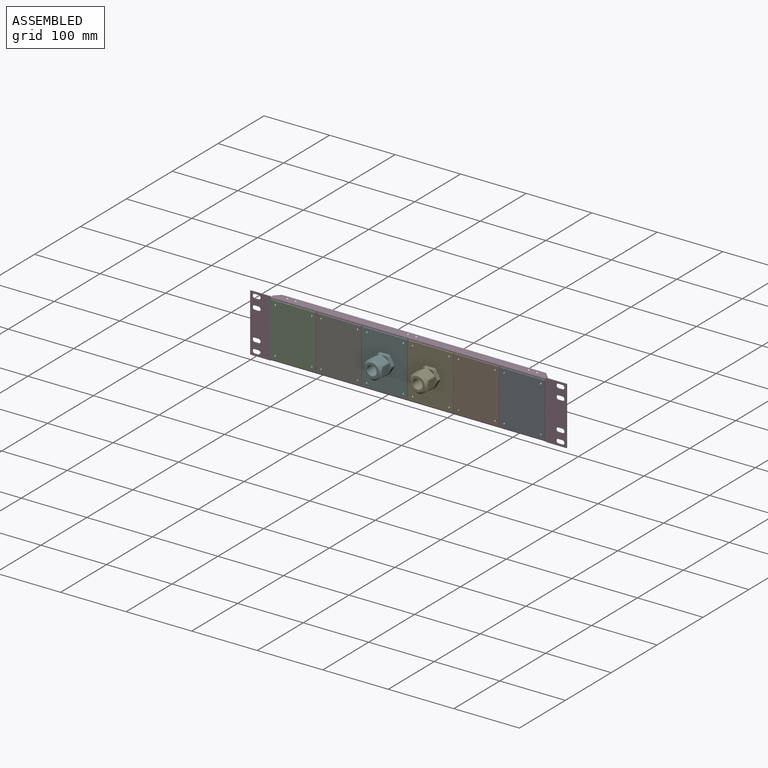
[diagram: assembled view]
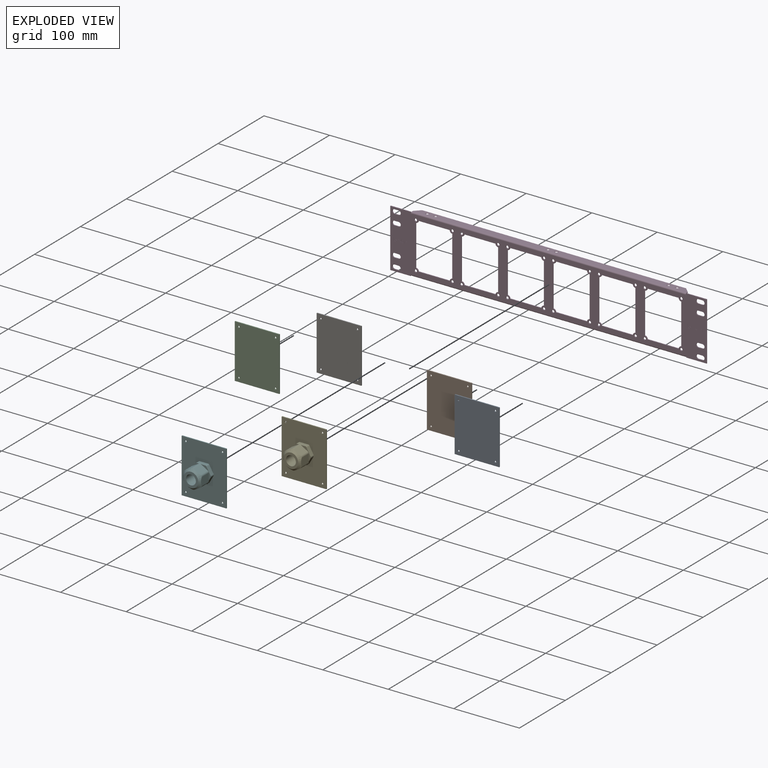
[diagram: exploded view]
GUIDED TOUR — MATED ASSEMBLY WITH SUBASSEMBLIES (Onshape document e841af8a7faca1a6e9dc9725, AutoMate assembly e841af8a7faca1a6e9dc9725_560531e6a08ae0286fed6a2a_71f489b101f3ecda44ea6269_default)

This assembly has 9 component occurrences arranged in 7 top-level units: 5 individual components plus 2 subassemblies (S0, S1). The tour has two levels: first the top level, where each subassembly is treated as one rigid unit; then each subassembly is toured internally in its own section (nesting deeper than one subassembly level is flattened into its subassembly's section).

Components are labeled P0..P8 across the whole record; subassembly units are labeled S0..S1. A mate is a constraint between two units; its type names the relative motion it leaves free:
  REVOLUTE — leaves rotation about the listed axis free (a hinge).
Axis/direction vectors are unit vectors and 'through' points are millimeter coordinates, both in the assembly's world frame.

TOP-LEVEL MATES (between units; each subassembly's internal mates are listed in its own section)
  1. REVOLUTE "Revolute 5": P7 <-> P3, axis (0.000, 1.000, 0.000) through (164.46, -1.27, 79.25) mm
  2. REVOLUTE "Revolute 10": P3 <-> P1, axis (0.000, -1.000, 0.000) through (374.02, -1.27, 9.14) mm
  3. REVOLUTE "Revolute 11": P3 <-> P0, axis (0.000, -1.000, 0.000) through (387.99, -1.27, 79.25) mm
  4. REVOLUTE "Revolute 8": P3 <-> P2, axis (0.000, -1.000, 0.000) through (94.61, -1.27, 79.25) mm
  5. REVOLUTE "Revolute 7": P2 <-> P3, axis (0.000, 1.000, 0.000) through (38.73, -1.27, 9.14) mm
  6. REVOLUTE "Revolute 4": S0 <-> P3, axis (0.000, 1.000, 0.000) through (304.17, -1.27, 9.14) mm
  7. REVOLUTE "Revolute 9": P1 <-> P3, axis (0.000, 1.000, 0.000) through (374.02, -1.27, 79.25) mm
  8. REVOLUTE "Revolute 3": S0 <-> P3, axis (0.000, 1.000, 0.000) through (248.29, -1.27, 79.25) mm
  9. REVOLUTE "Revolute 2": P3 <-> S1, axis (0.000, -1.000, 0.000) through (234.31, -1.27, 9.14) mm
  10. REVOLUTE "Revolute 12": P3 <-> P0, axis (0.000, -1.000, 0.000) through (443.87, -1.27, 9.14) mm
  11. REVOLUTE "Revolute 6": P7 <-> P3, axis (0.000, 1.000, 0.000) through (164.46, -1.27, 9.14) mm
  12. REVOLUTE "Revolute 1": S1 <-> P3, axis (0.000, 1.000, 0.000) through (178.43, -1.27, 79.25) mm

TOP-LEVEL ASSEMBLY ORDER
  1. P7 — the base component [order verified]
  2. S1 [order verified]
  3. S0 [order verified]
  4. P2 [order verified]
  5. P1 [order verified]
  6. P0 [order verified]
  7. P3 [order verified]
Order-tag legend:
  [order verified] — this step's position reverses a verified removal order: the component was checked to insert without passing through the ones already placed.

Of the 9 component occurrences, 6 carry the full construction recipe — the FeatureScript program that regenerates the part's solid from scratch; the rest are supplied as boundary geometry only. Each toured unit is shown spotlighted twice — assembled, then exploded with a leader line back to its socket (green = recipe-attached component, orange = geometry-only, blue = subassembly unit; the rest desaturated gray).
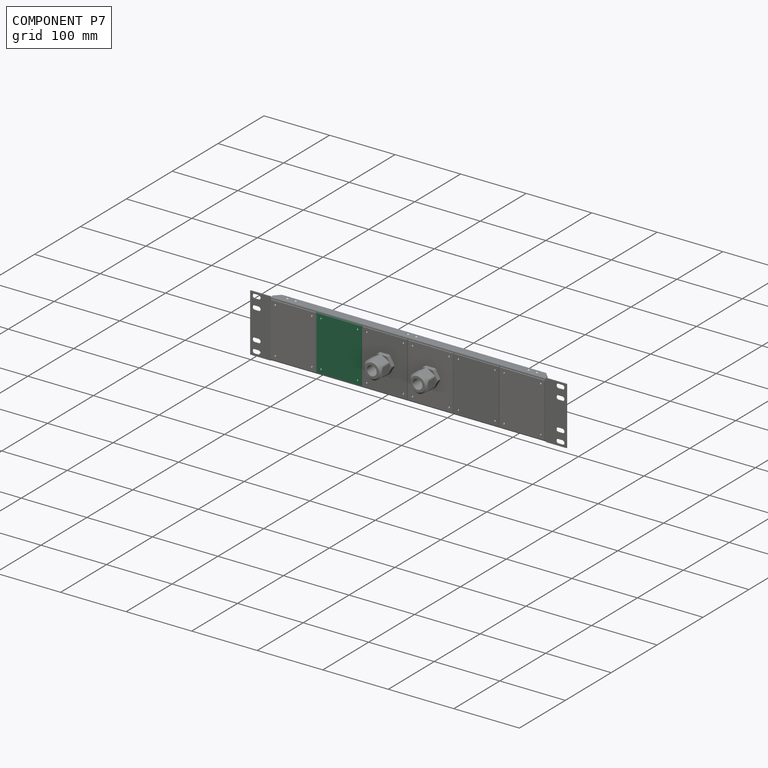
[diagram: component P7 — assembled]
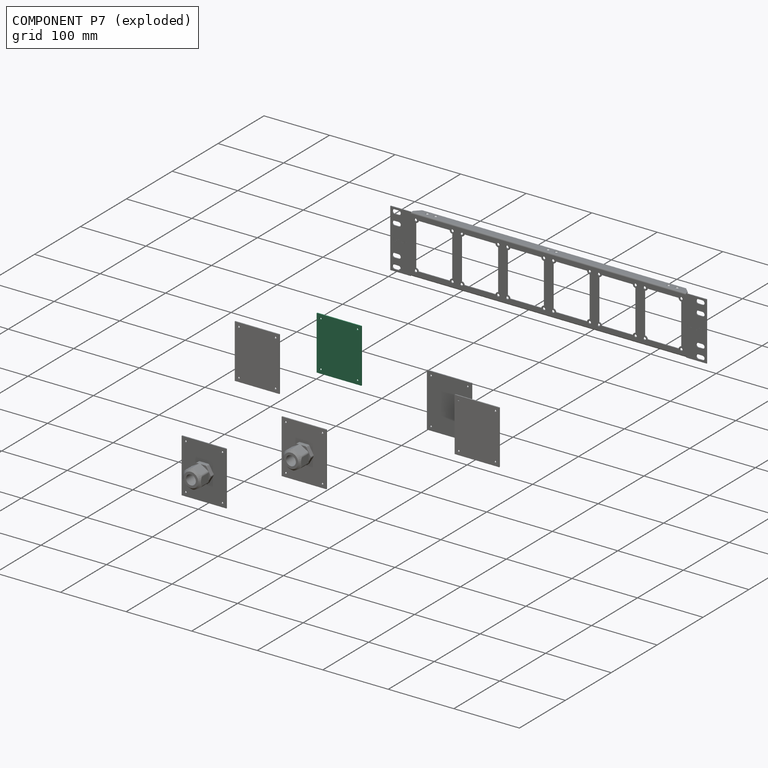
[diagram: component P7 — exploded]
COMPONENT P7 — same part as P0 (CADFS 00722018); its construction recipe is shown at P0.
Held by: REVOLUTE mate "Revolute 5" to P3; REVOLUTE mate "Revolute 6" to P3.
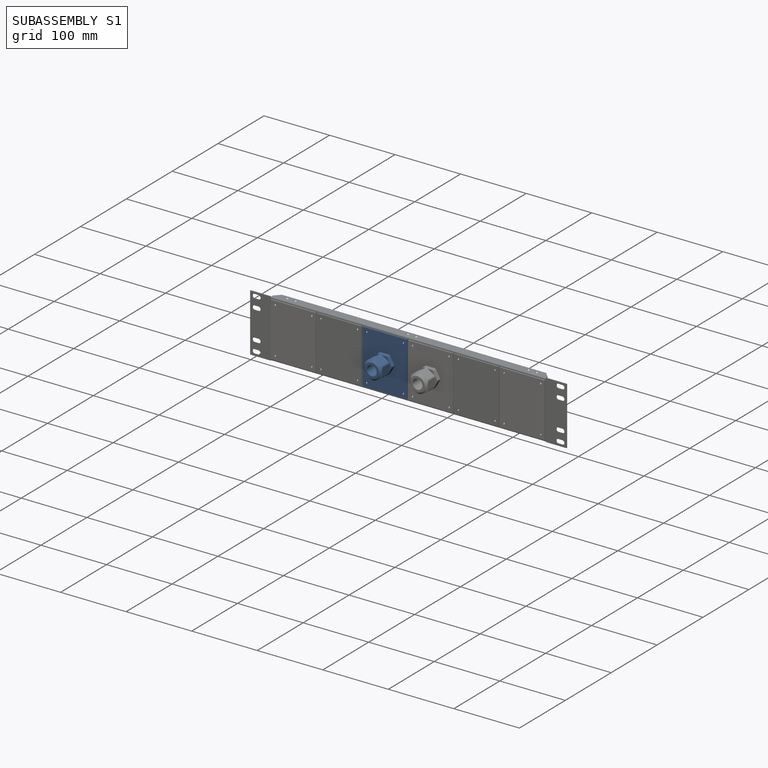
[diagram: subassembly S1 — assembled]
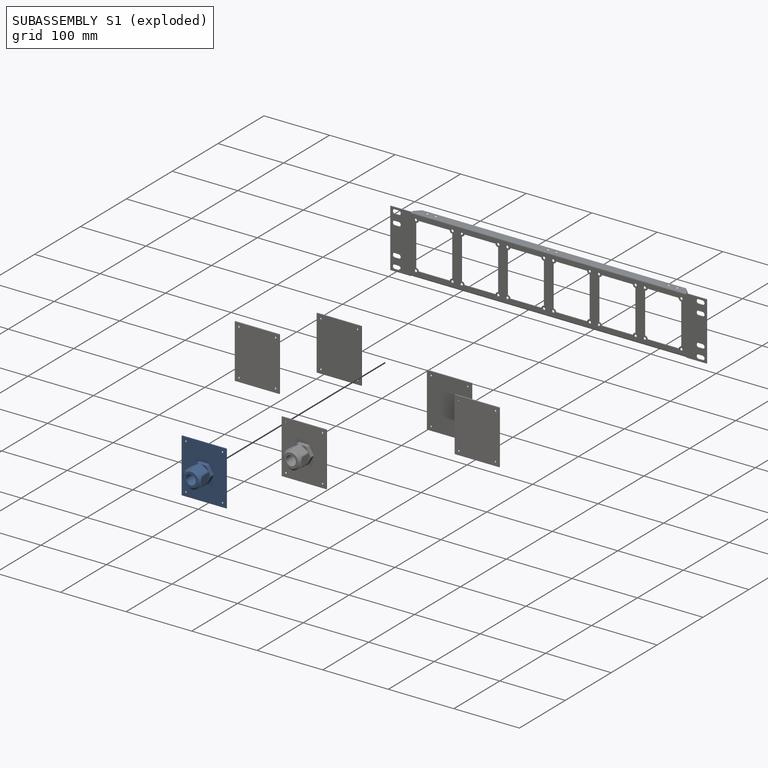
[diagram: subassembly S1 — exploded]
SUBASSEMBLY S1 — 2 components (P5, P6), of which 1 recipe-attached; toured below.
Held by: REVOLUTE mate "Revolute 2" to P3; REVOLUTE mate "Revolute 1" to P3.
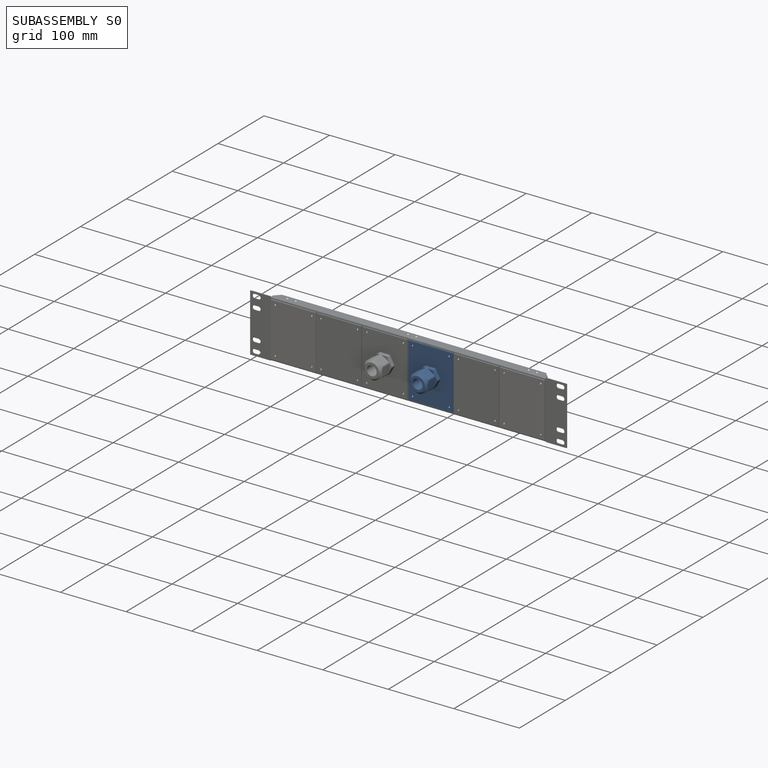
[diagram: subassembly S0 — assembled]
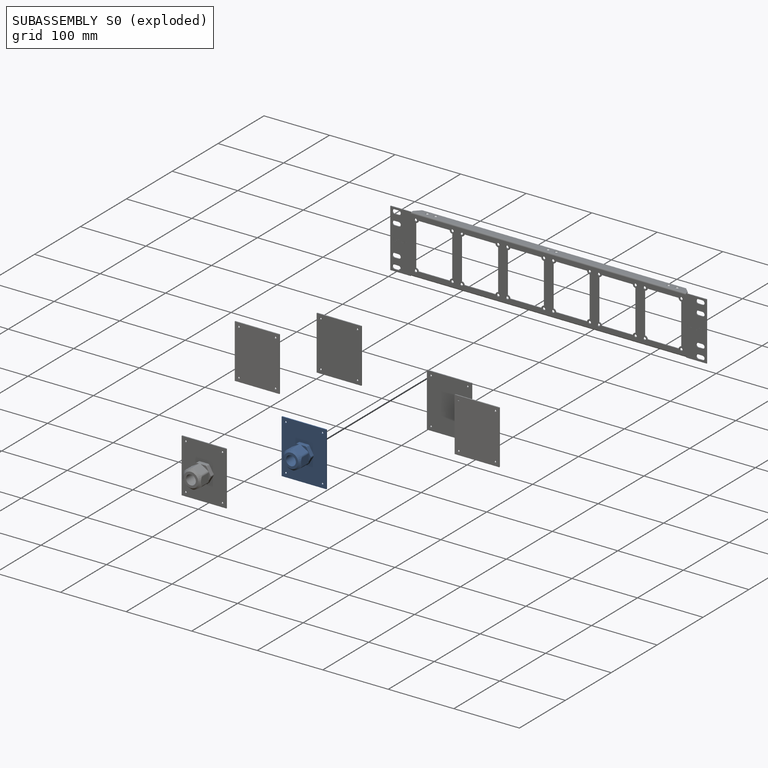
[diagram: subassembly S0 — exploded]
SUBASSEMBLY S0 — 2 components (P4, P8), of which 1 recipe-attached; toured below.
Held by: REVOLUTE mate "Revolute 4" to P3; REVOLUTE mate "Revolute 3" to P3.
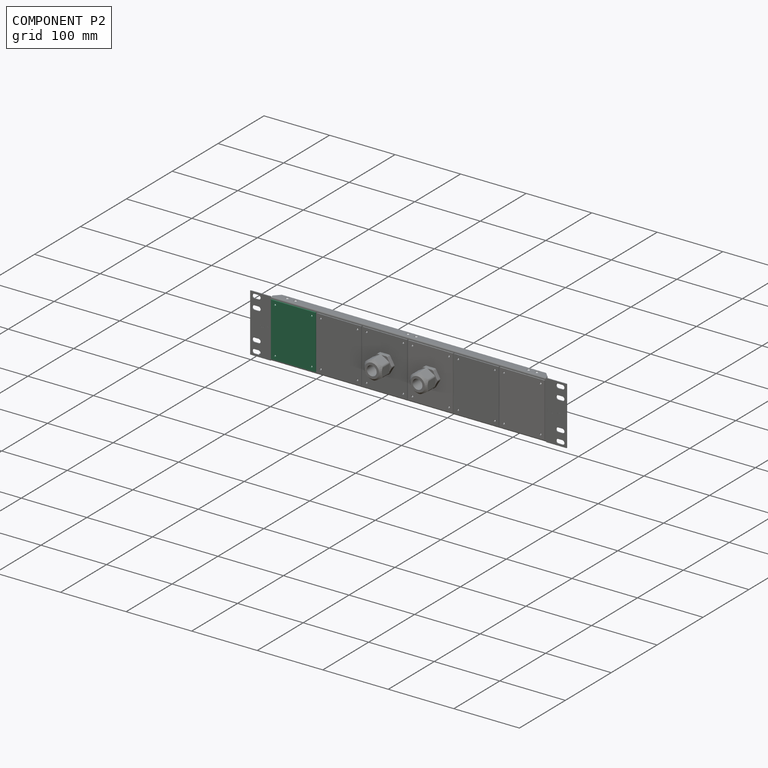
[diagram: component P2 — assembled]
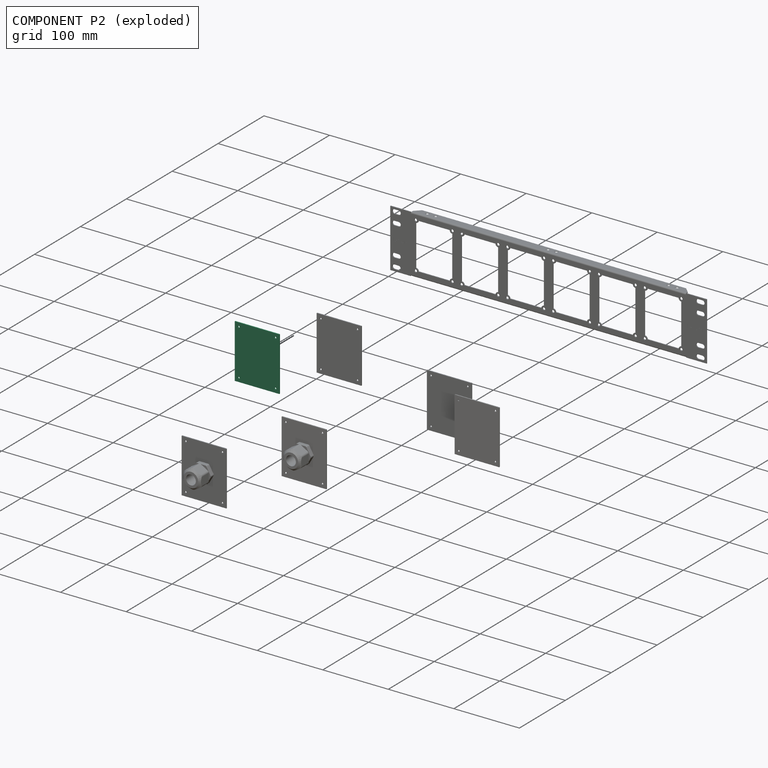
[diagram: component P2 — exploded]
COMPONENT P2 — same part as P0 (CADFS 00722018); its construction recipe is shown at P0.
Held by: REVOLUTE mate "Revolute 8" to P3; REVOLUTE mate "Revolute 7" to P3.
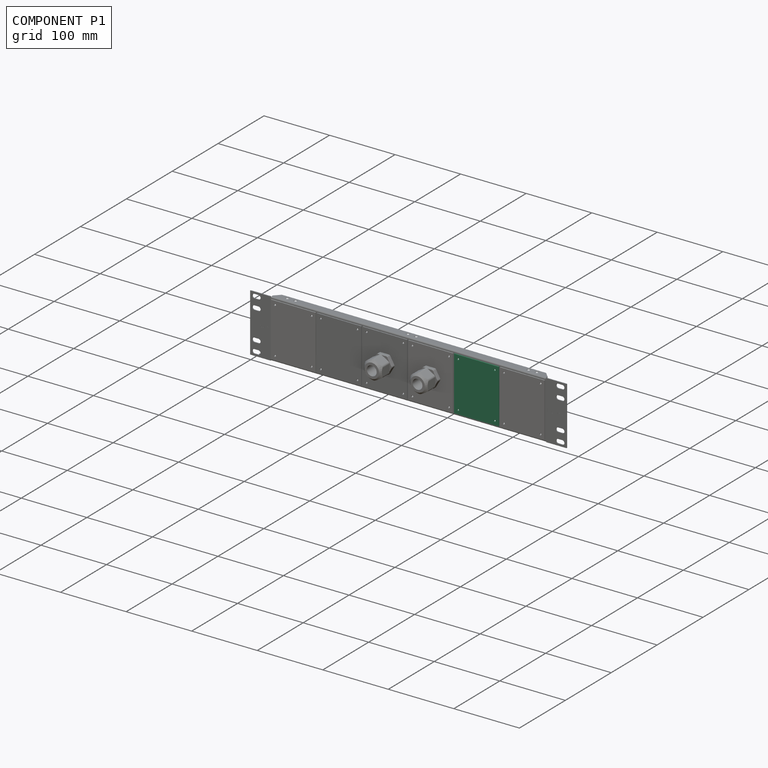
[diagram: component P1 — assembled]
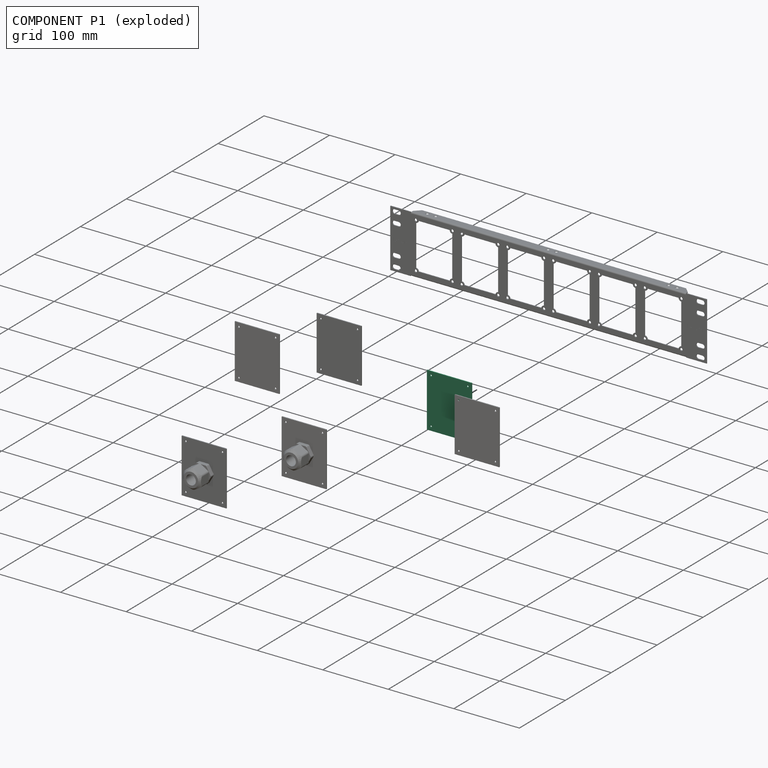
[diagram: component P1 — exploded]
COMPONENT P1 — same part as P0 (CADFS 00722018); its construction recipe is shown at P0.
Held by: REVOLUTE mate "Revolute 10" to P3; REVOLUTE mate "Revolute 9" to P3.
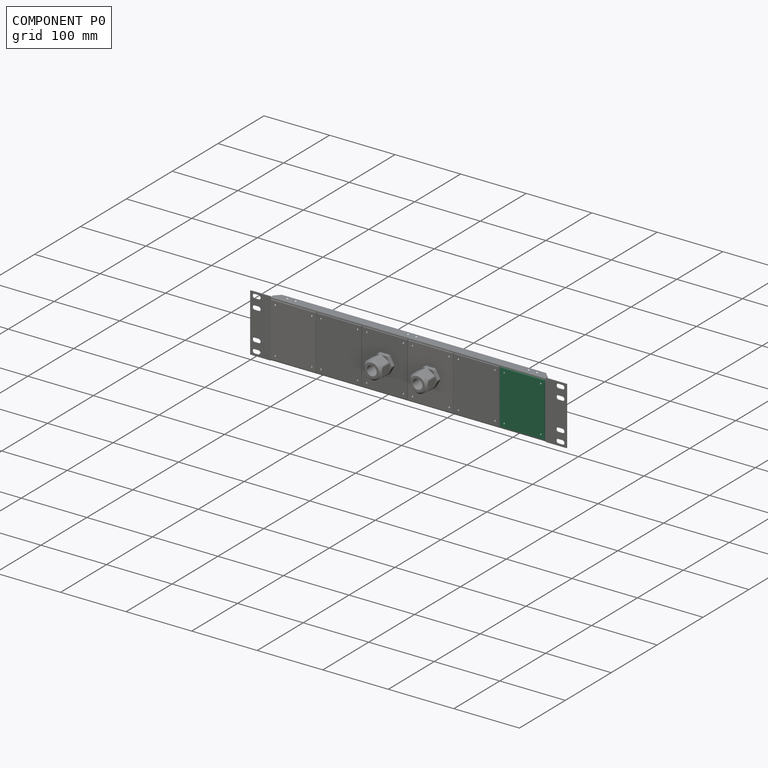
[diagram: component P0 — assembled]
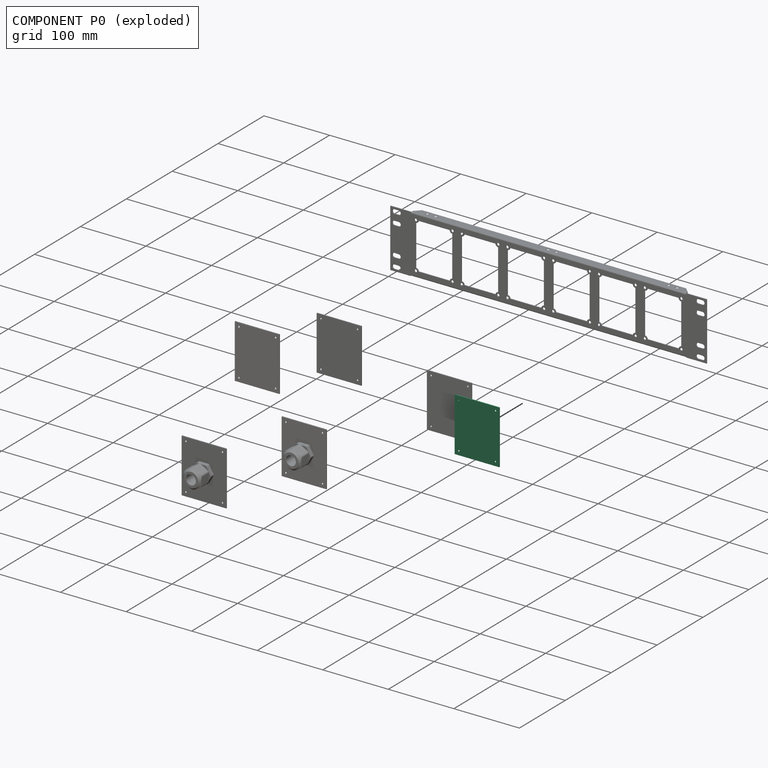
[diagram: component P0 — exploded]
COMPONENT P0 — recipe-attached (CADFS 00722018, mesh-verified: the recipe's output STEP matches this component's geometry to below the mesh-comparison resolution (tessellation chordal tolerance ~0.16 mm)).
Held by: REVOLUTE mate "Revolute 11" to P3; REVOLUTE mate "Revolute 12" to P3.
Construction recipe (FeatureScript — the CAD program that rebuilds this solid; sketch coordinates are in the units given by the * unit suffixes, e.g. mm):

FeatureScript 1511;
import(path : "onshape/std/geometry.fs", version : "1511.0");
import(path : "onshape/std/common.fs", version : "1511.0");
const mm = millimeter;
const VERTEX = EntityType.VERTEX;
const EDGE = EntityType.EDGE;
const FACE = EntityType.FACE;
const BODY = EntityType.BODY;
function v(x, y){return vector(x, y);}
function OD(order){return orderDisambiguation(order);}
function OSD(set){return originalSetDisambiguation(set);}
function TD(topology){return topologyDisambiguation(topology);}
function TDD(query){return trueDependencyDisambiguation(query);}
function sQuery(a, b, c) {return sketchEntityQuery(a, b, c);}

annotation { "Feature Type Name" : "Feature", "Feature Type Description" : "" }
export const myFeature = defineFeature(function(context is Context, id is Id, definition is map)
    precondition{}
    {
        {
            var Q0;
            Q0=qCreatedBy(makeId("Front.planeOp"),FACE);
            var sketch = newSketch(context, id + "F0", { "sketchPlane" : qUnion([Q0])});
            skLineSegment(sketch, "E0.bottom", {"start": v(0, 0) * mm, "end": v(68.07, 0) * mm});
            skLineSegment(sketch, "E0.top", {"start": v(0, -82.04) * mm, "end": v(68.07, -82.04) * mm});
            skLineSegment(sketch, "E0.left", {"start": v(0, 0) * mm, "end": v(0, -82.04) * mm});
            skLineSegment(sketch, "E0.right", {"start": v(68.07, 0) * mm, "end": v(68.07, -82.04) * mm});
            skSolve(sketch);
        }
        {
            var Q0;
            Q0 = qSketchRegion(id + "F0", true);
            extrude(context, id + "F1", {"entities" : qUnion([Q0]), "depth" : 1.52 * mm, "offsetDistance" : 25.4 * mm});
        }
        {
            var Q0;
            Q0=makeQuery(id+"F1.opExtrude","CAP_FACE",FACE,{"disambiguationData":[OSD([sQuery(id+"F0.wireOp",EDGE,"E0.bottom"),sQuery(id+"F0.wireOp",EDGE,"E0.top"),sQuery(id+"F0.wireOp",EDGE,"E0.left"),sQuery(id+"F0.wireOp",EDGE,"E0.right")])],"isStart":false});
            var sketch = newSketch(context, id + "F2", { "sketchPlane" : qUnion([Q0])});
            skPoint(sketch, "E1", {"position": v(6.1, -5.97) * mm});
            skPoint(sketch, "E2", {"position": v(61.98, -5.97) * mm});
            skPoint(sketch, "E3", {"position": v(61.98, -76.07) * mm});
            skPoint(sketch, "E4", {"position": v(6.1, -76.07) * mm});
            skLineSegment(sketch, "E5", {"start": v(34.04, 0) * mm, "end": v(34.04, -82.04) * mm, "construction": true});
            skLineSegment(sketch, "E6", {"start": v(68.07, -41.02) * mm, "end": v(0, -41.02) * mm, "construction": true});
            skSolve(sketch);
        }
        {
            var Q0;
            Q0=sQuery(id+"F2.wireOp",VERTEX,"E1");
            var Q1;
            Q1=sQuery(id+"F2.wireOp",VERTEX,"E2");
            var Q2;
            Q2=sQuery(id+"F2.wireOp",VERTEX,"E3");
            var Q3;
            Q3=sQuery(id+"F2.wireOp",VERTEX,"E4");
            var Q4;
            Q4=makeQuery(id+"F1.opExtrude","SWEPT_BODY",BODY,{"disambiguationData":[OSD([sQuery(id+"F0.wireOp",EDGE,"E0.bottom"),sQuery(id+"F0.wireOp",EDGE,"E0.top"),sQuery(id+"F0.wireOp",EDGE,"E0.left"),sQuery(id+"F0.wireOp",EDGE,"E0.right")])]});
            hole(context, id + "F3", {"style" : HoleStyle.SIMPLE, "endStyle" : HoleEndStyle.THROUGH, "standardTappedOrClearance" : lookupTablePath({ "standard" : "ANSI", "engagement" : "75%", "pitch" : "32 tpi", "size" : "#6", "type" : "Tapped" }), "standardBlindInLast" : lookupTablePath({ "standard" : "ANSI", "engagement" : "75%", "pitch" : "32 tpi", "size" : "#6", "type" : "Tapped" }), "holeDiameter" : 2.7 * mm, "majorDiameter" : 3.5 * mm, "showTappedDepth" : true, "isTappedThrough" : true, "tappedDepth" : 10.32 * mm, "tapClearance" : 3, "startFromSketch" : true, "locations" : qUnion([Q0, Q1, Q2, Q3]), "scope" : qUnion([Q4])});
        }
    });
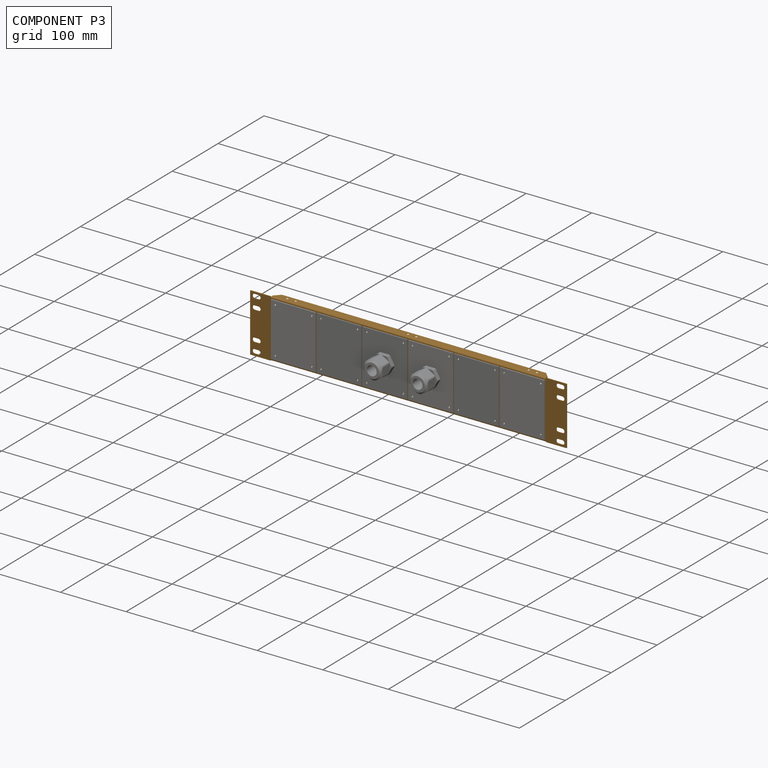
[diagram: component P3 — assembled]
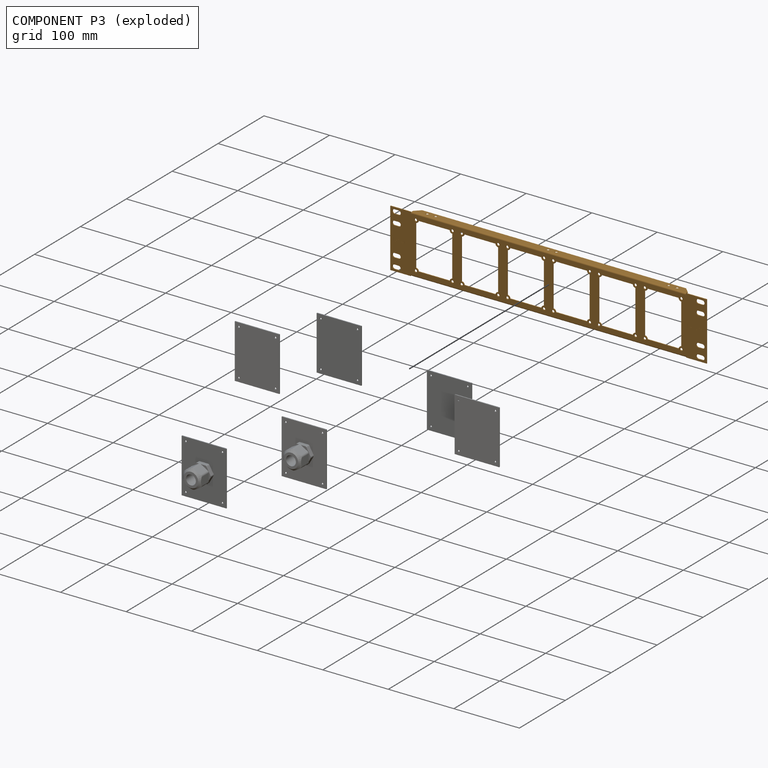
[diagram: component P3 — exploded]
COMPONENT P3 — geometry summary (no construction recipe available for this part):
  bounding box: 482.6 x 88.4 x 12.4 mm
  B-rep topology: 1 solid, 294 faces, 1680 edges
  volume: 34413 mm^3 (6% of its bounding box)
  symmetry: 2-fold rotationally symmetric about the z axis; mirror-symmetric across its x mid-plane, y mid-plane
Held by: REVOLUTE mate "Revolute 5" to P7; REVOLUTE mate "Revolute 10" to P1; REVOLUTE mate "Revolute 11" to P0; REVOLUTE mate "Revolute 8" to P2; REVOLUTE mate "Revolute 7" to P2; REVOLUTE mate "Revolute 4" to P4; REVOLUTE mate "Revolute 9" to P1; REVOLUTE mate "Revolute 3" to P4; REVOLUTE mate "Revolute 2" to P5; REVOLUTE mate "Revolute 12" to P0; REVOLUTE mate "Revolute 6" to P7; REVOLUTE mate "Revolute 1" to P5.
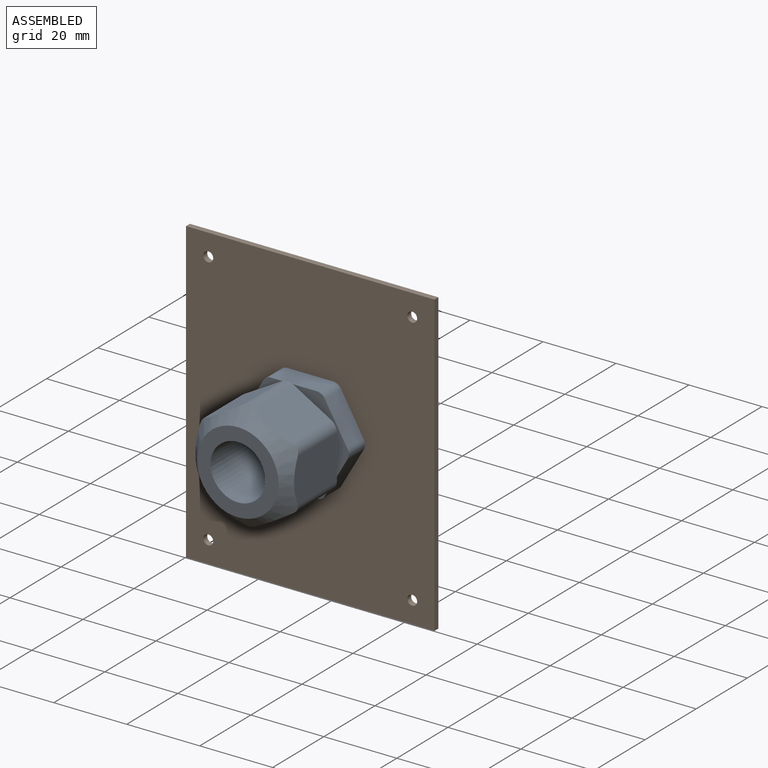
[diagram: subassembly S0 — assembled view]
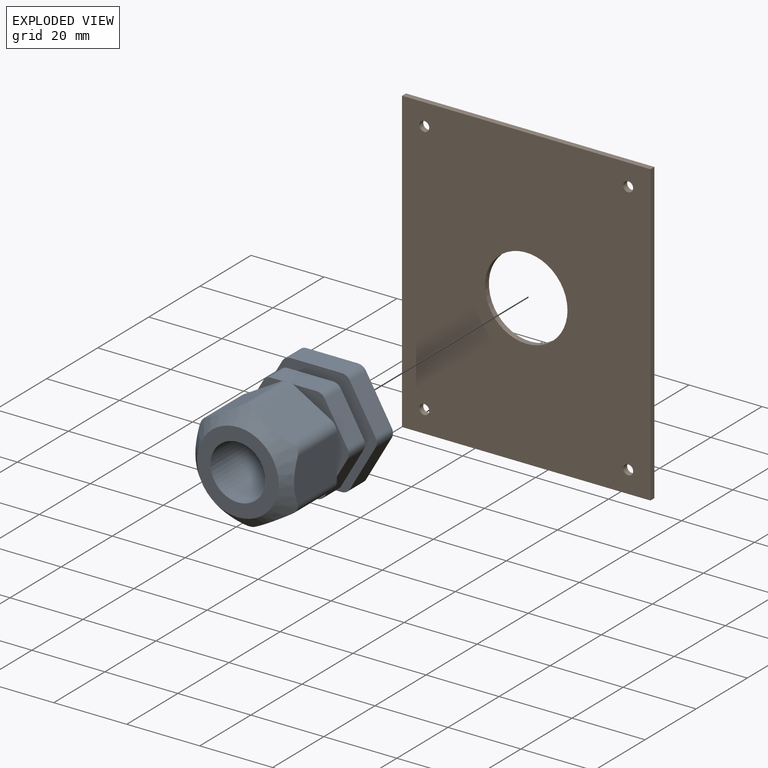
[diagram: subassembly S0 — exploded view]
SUBASSEMBLY S0 TOUR — 2 components, shown here in isolation at its own camera.

INTERNAL MATES
  1. REVOLUTE "Revolute 1": P4 <-> P8, axis (0.000, 1.000, 0.000) through (276.23, -2.79, 44.20) mm
  2. REVOLUTE "Revolute 1": P4 <-> P8, axis (0.000, 1.000, 0.000) through (276.23, -2.79, 44.20) mm

ASSEMBLY ORDER (within the subassembly)
  1. P4 — the base component [order verified]
  2. P8 [order verified]
Order-tag legend:
  [order verified] — this step's position reverses a verified removal order: the component was checked to insert without passing through the ones already placed.
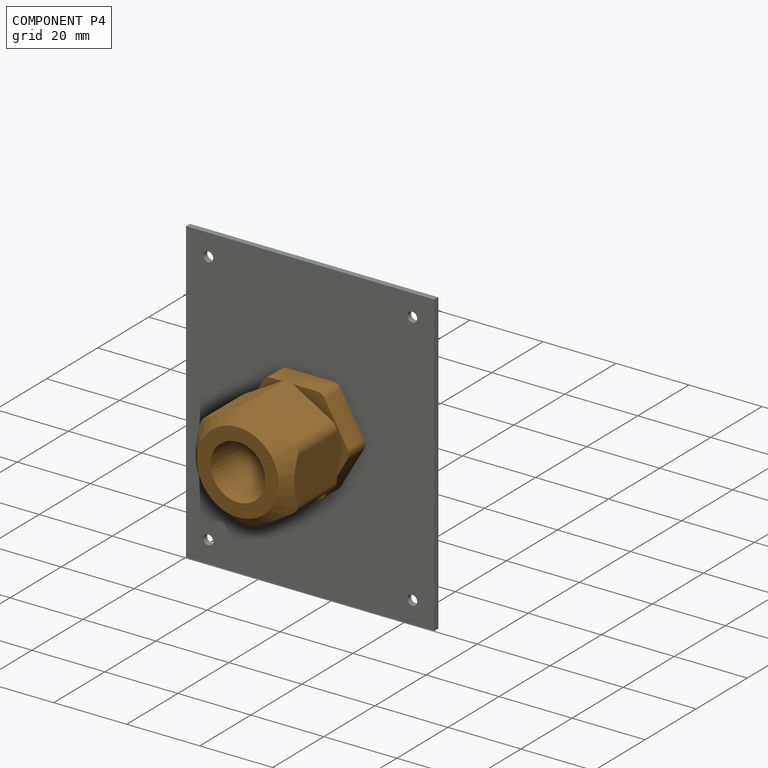
[diagram: component P4 — assembled]
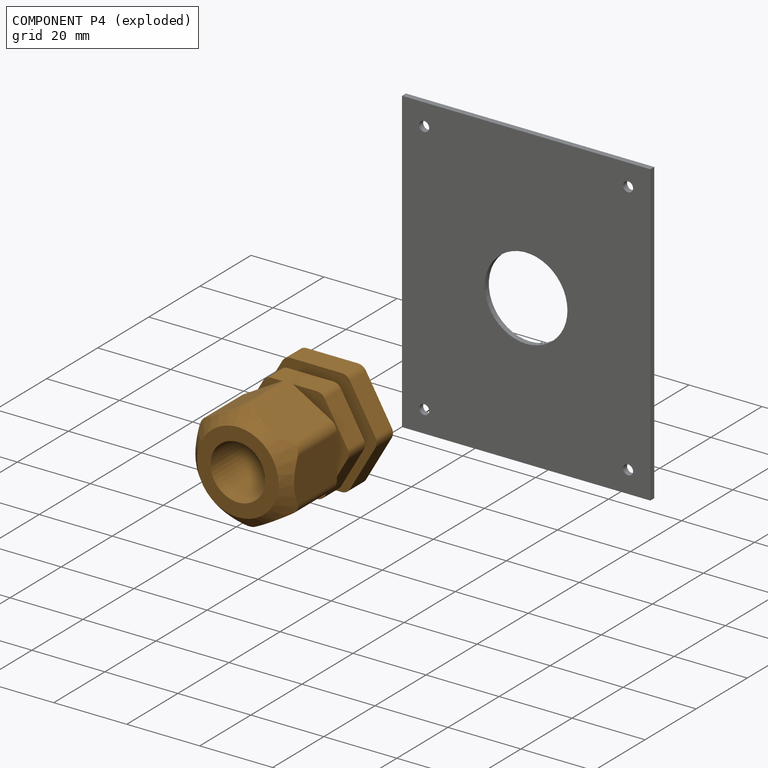
[diagram: component P4 — exploded]
COMPONENT P4 — geometry summary (no construction recipe available for this part):
  bounding box: 42.3 x 34.0 x 31.0 mm
  B-rep topology: 1 solid, 53 faces, 278 edges
  volume: 16448 mm^3 (37% of its bounding box)
  symmetry: 6-fold rotationally symmetric about the y axis
Held by: REVOLUTE mate "Revolute 1" to P8; REVOLUTE mate "Revolute 1" to P8.
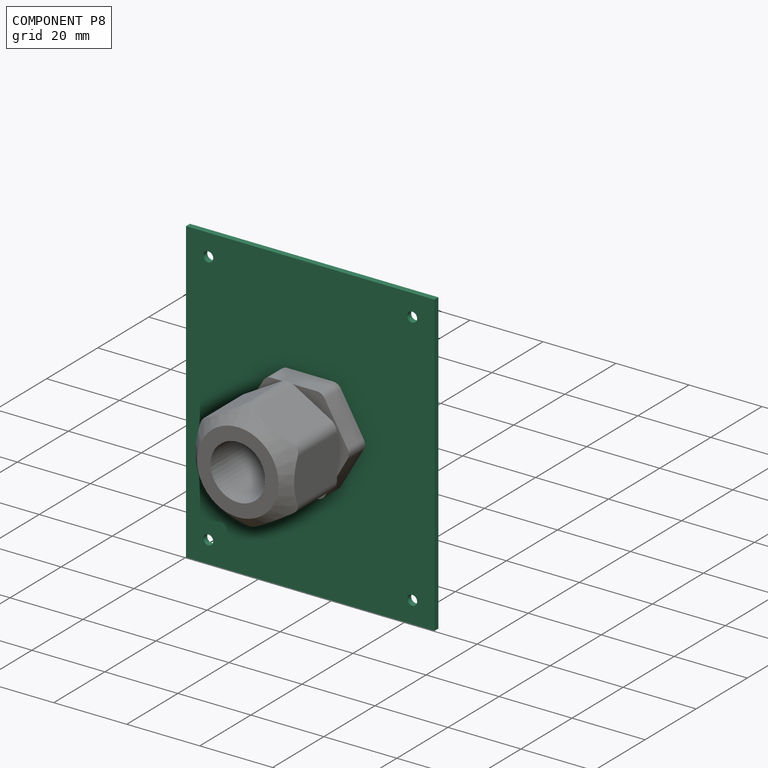
[diagram: component P8 — assembled]
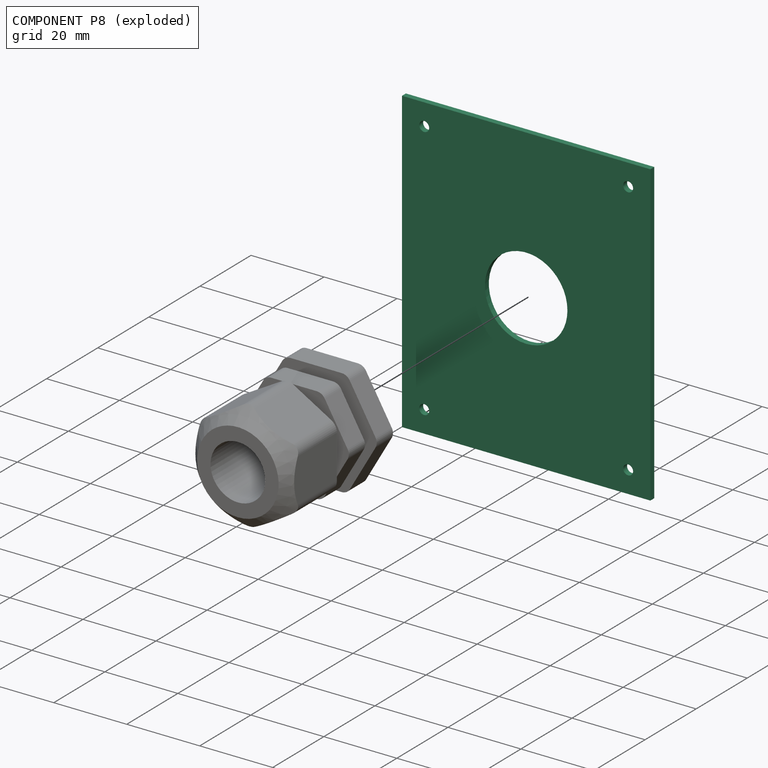
[diagram: component P8 — exploded]
COMPONENT P8 — recipe-attached (CADFS 00722019, mesh-verified: the recipe's output STEP matches this component's geometry to below the mesh-comparison resolution (tessellation chordal tolerance ~0.16 mm)).
Held by: REVOLUTE mate "Revolute 1" to P4; REVOLUTE mate "Revolute 1" to P4.
Construction recipe (FeatureScript — the CAD program that rebuilds this solid; sketch coordinates are in the units given by the * unit suffixes, e.g. mm):

FeatureScript 1511;
import(path : "onshape/std/geometry.fs", version : "1511.0");
import(path : "onshape/std/common.fs", version : "1511.0");
const mm = millimeter;
const VERTEX = EntityType.VERTEX;
const EDGE = EntityType.EDGE;
const FACE = EntityType.FACE;
const BODY = EntityType.BODY;
function v(x, y){return vector(x, y);}
function OD(order){return orderDisambiguation(order);}
function OSD(set){return originalSetDisambiguation(set);}
function TD(topology){return topologyDisambiguation(topology);}
function TDD(query){return trueDependencyDisambiguation(query);}
function sQuery(a, b, c) {return sketchEntityQuery(a, b, c);}

annotation { "Feature Type Name" : "Feature", "Feature Type Description" : "" }
export const myFeature = defineFeature(function(context is Context, id is Id, definition is map)
    precondition{}
    {
        {
            var Q0;
            Q0=qCreatedBy(makeId("Front.planeOp"),FACE);
            var sketch = newSketch(context, id + "F0", { "sketchPlane" : qUnion([Q0])});
            skLineSegment(sketch, "E0.bottom", {"start": v(0, 0) * mm, "end": v(68.07, 0) * mm});
            skLineSegment(sketch, "E0.top", {"start": v(0, -82.04) * mm, "end": v(68.07, -82.04) * mm});
            skLineSegment(sketch, "E0.left", {"start": v(0, 0) * mm, "end": v(0, -82.04) * mm});
            skLineSegment(sketch, "E0.right", {"start": v(68.07, 0) * mm, "end": v(68.07, -82.04) * mm});
            skSolve(sketch);
        }
        {
            var Q0;
            Q0=qSketchRegion(id+"F0",true);
            extrude(context, id + "F1", {"entities" : qUnion([Q0]), "depth" : 1.52 * mm, "offsetDistance" : 25.4 * mm});
        }
        {
            var Q0;
            Q0=makeQuery(id+"F1.opExtrude","CAP_FACE",FACE,{"disambiguationData":[OSD([sQuery(id+"F0.wireOp",EDGE,"E0.bottom"),sQuery(id+"F0.wireOp",EDGE,"E0.top"),sQuery(id+"F0.wireOp",EDGE,"E0.left"),sQuery(id+"F0.wireOp",EDGE,"E0.right")])],"isStart":false});
            var sketch = newSketch(context, id + "F2", { "sketchPlane" : qUnion([Q0])});
            skPoint(sketch, "E1", {"position": v(6.1, -5.97) * mm});
            skPoint(sketch, "E2", {"position": v(61.98, -5.97) * mm});
            skPoint(sketch, "E3", {"position": v(61.98, -76.07) * mm});
            skPoint(sketch, "E4", {"position": v(6.1, -76.07) * mm});
            skLineSegment(sketch, "E5", {"start": v(34.04, 0) * mm, "end": v(34.04, -82.04) * mm, "construction": true});
            skLineSegment(sketch, "E6", {"start": v(68.07, -41.02) * mm, "end": v(0, -41.02) * mm, "construction": true});
            skSolve(sketch);
        }
        {
            var Q0;
            Q0=sQuery(id+"F2.wireOp",VERTEX,"E1");
            var Q1;
            Q1=sQuery(id+"F2.wireOp",VERTEX,"E2");
            var Q2;
            Q2=sQuery(id+"F2.wireOp",VERTEX,"E3");
            var Q3;
            Q3=sQuery(id+"F2.wireOp",VERTEX,"E4");
            var Q4;
            Q4=makeQuery(id+"F1.opExtrude","SWEPT_BODY",BODY,{"disambiguationData":[OSD([sQuery(id+"F0.wireOp",EDGE,"E0.bottom"),sQuery(id+"F0.wireOp",EDGE,"E0.top"),sQuery(id+"F0.wireOp",EDGE,"E0.left"),sQuery(id+"F0.wireOp",EDGE,"E0.right")])]});
            hole(context, id + "F3", {"style" : HoleStyle.SIMPLE, "endStyle" : HoleEndStyle.THROUGH, "standardTappedOrClearance" : lookupTablePath({ "standard" : "ANSI", "engagement" : "75%", "pitch" : "32 tpi", "size" : "#6", "type" : "Tapped" }), "standardBlindInLast" : lookupTablePath({ "standard" : "ANSI", "engagement" : "75%", "pitch" : "32 tpi", "size" : "#6", "type" : "Tapped" }), "holeDiameter" : 2.7 * mm, "majorDiameter" : 3.5 * mm, "showTappedDepth" : true, "isTappedThrough" : true, "tappedDepth" : 10.32 * mm, "tapClearance" : 3, "startFromSketch" : true, "locations" : qUnion([Q0, Q1, Q2, Q3]), "scope" : qUnion([Q4])});
        }
        {
            var Q0;
            Q0=makeQuery(id+"F1.opExtrude","CAP_FACE",FACE,{"disambiguationData":[OSD([sQuery(id+"F0.wireOp",EDGE,"E0.bottom"),sQuery(id+"F0.wireOp",EDGE,"E0.top"),sQuery(id+"F0.wireOp",EDGE,"E0.left"),sQuery(id+"F0.wireOp",EDGE,"E0.right")])],"isStart":false});
            var sketch = newSketch(context, id + "F4", { "sketchPlane" : qUnion([Q0])});
            skCircle(sketch, "E7", {"center": v(34.04, -41.02) * mm, "radius": 11.3 * mm});
            skLineSegment(sketch, "E8", {"start": v(34.04, 0) * mm, "end": v(34.04, -82.04) * mm, "construction": true});
            skLineSegment(sketch, "E9", {"start": v(68.07, -41.02) * mm, "end": v(0, -41.02) * mm, "construction": true});
            skSolve(sketch);
        }
        {
            var Q0;
            Q0 = qSketchRegion(id + "F4", true);
            extrude(context, id + "F5", {"entities" : qUnion([Q0]), "operationType" : NewBodyOperationType.REMOVE, "endBound" : BoundingType.THROUGH_ALL, "oppositeDirection" : true, "depth" : 25.4 * mm, "offsetDistance" : 25.4 * mm});
        }
    });
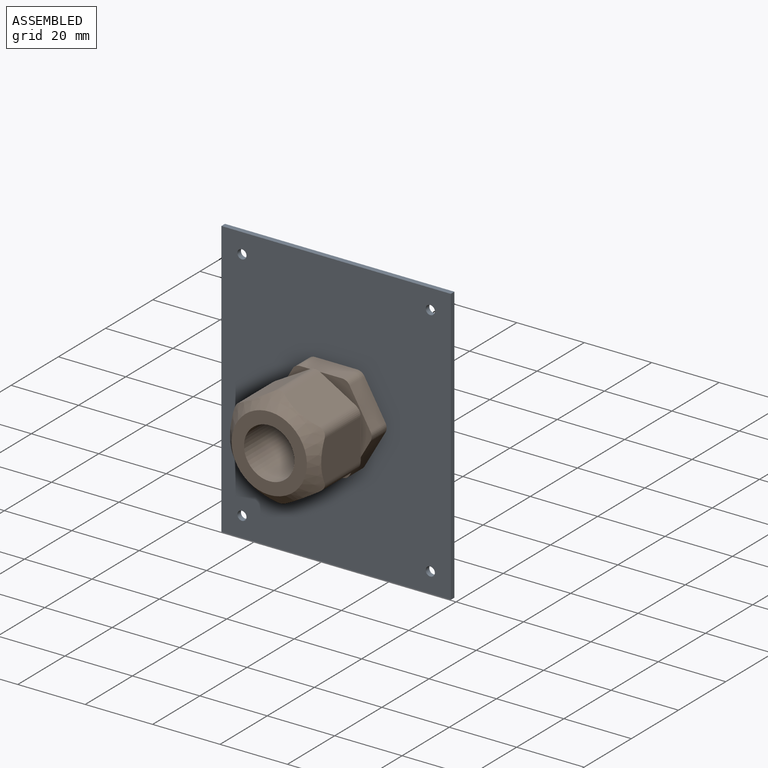
[diagram: subassembly S1 — assembled view]
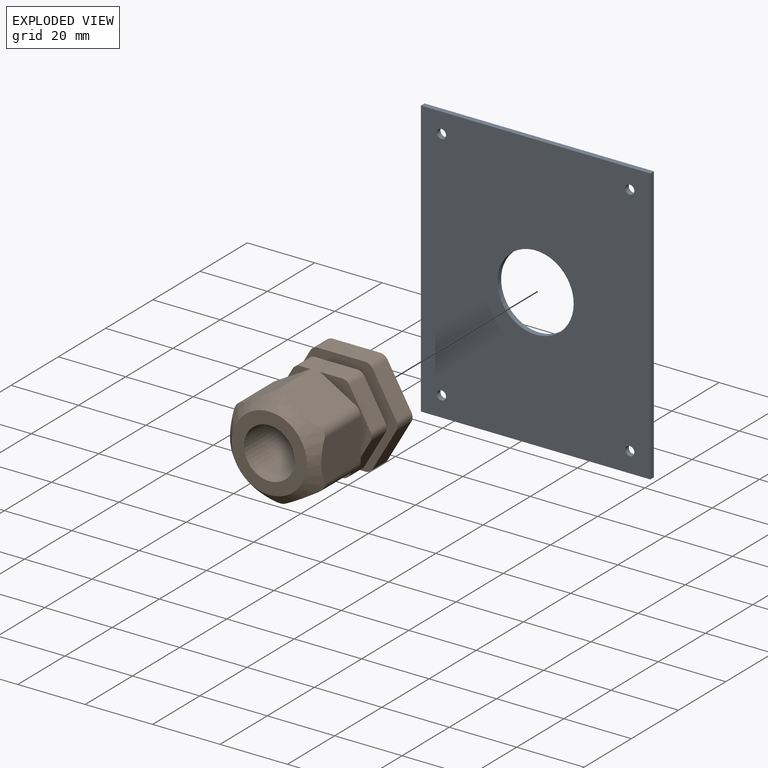
[diagram: subassembly S1 — exploded view]
SUBASSEMBLY S1 TOUR — 2 components, shown here in isolation at its own camera.

INTERNAL MATES
  1. REVOLUTE "Revolute 1": P6 <-> P5, axis (0.000, 1.000, 0.000) through (206.37, -2.79, 44.20) mm
  2. REVOLUTE "Revolute 1": P6 <-> P5, axis (0.000, 1.000, 0.000) through (206.37, -2.79, 44.20) mm

ASSEMBLY ORDER (within the subassembly)
  1. P6 — the base component [order verified]
  2. P5 [order verified]
Order-tag legend:
  [order verified] — this step's position reverses a verified removal order: the component was checked to insert without passing through the ones already placed.
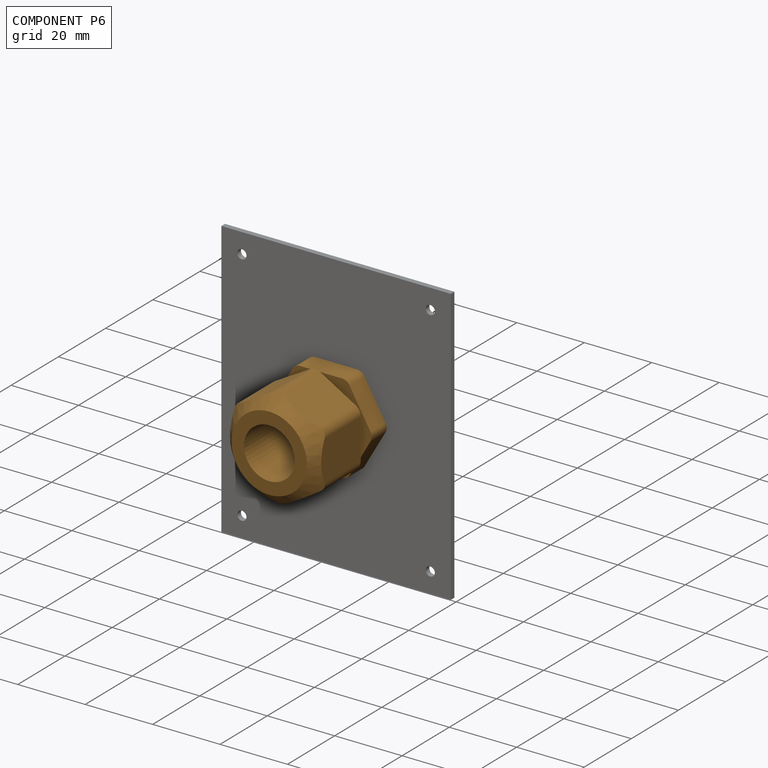
[diagram: component P6 — assembled]
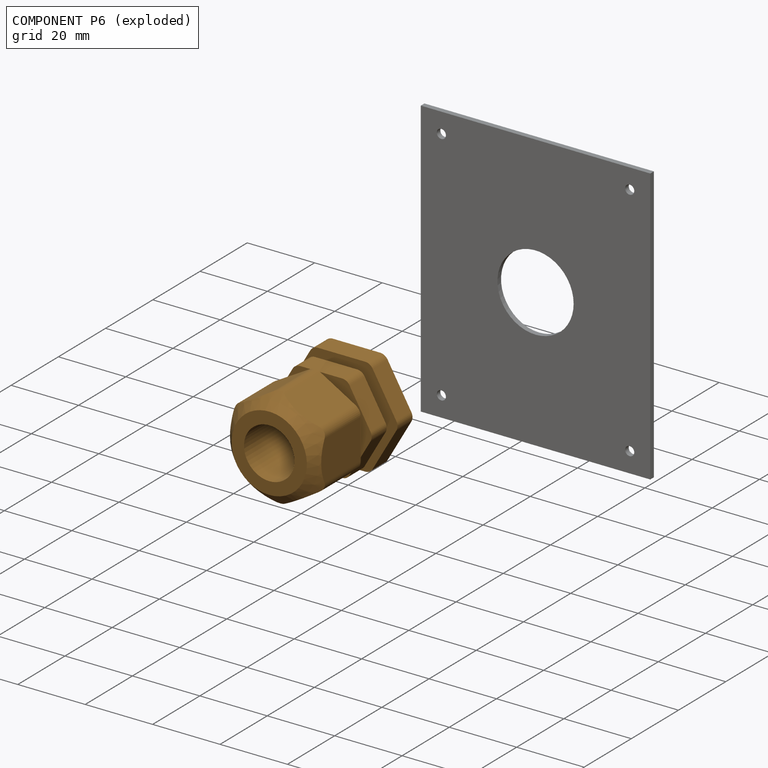
[diagram: component P6 — exploded]
COMPONENT P6 — geometry summary (no construction recipe available for this part):
  bounding box: 42.3 x 34.0 x 31.0 mm
  B-rep topology: 1 solid, 53 faces, 278 edges
  volume: 16448 mm^3 (37% of its bounding box)
  symmetry: 6-fold rotationally symmetric about the y axis
Held by: REVOLUTE mate "Revolute 1" to P5; REVOLUTE mate "Revolute 1" to P5.
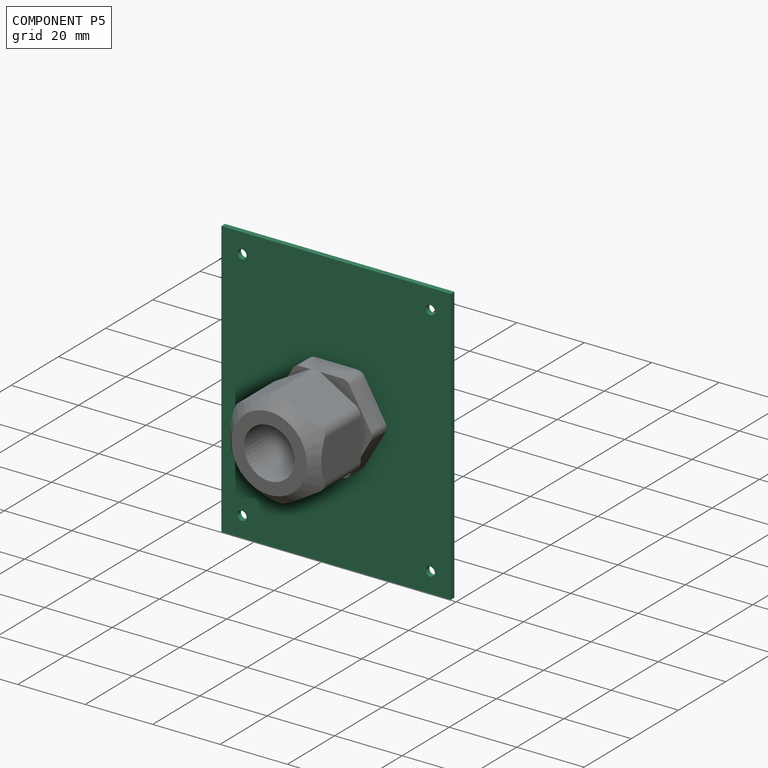
[diagram: component P5 — assembled]
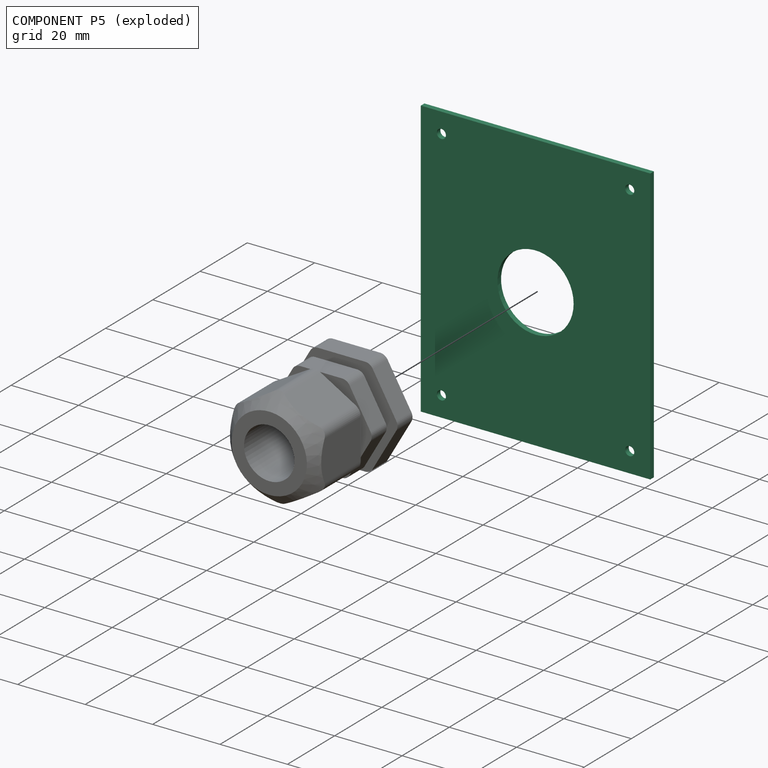
[diagram: component P5 — exploded]
COMPONENT P5 — recipe-attached (CADFS 00722019, mesh-verified: the recipe's output STEP matches this component's geometry to below the mesh-comparison resolution (tessellation chordal tolerance ~0.16 mm)).
Held by: REVOLUTE mate "Revolute 1" to P6; REVOLUTE mate "Revolute 1" to P6.
Construction recipe (FeatureScript — the CAD program that rebuilds this solid; sketch coordinates are in the units given by the * unit suffixes, e.g. mm):

FeatureScript 1511;
import(path : "onshape/std/geometry.fs", version : "1511.0");
import(path : "onshape/std/common.fs", version : "1511.0");
const mm = millimeter;
const VERTEX = EntityType.VERTEX;
const EDGE = EntityType.EDGE;
const FACE = EntityType.FACE;
const BODY = EntityType.BODY;
function v(x, y){return vector(x, y);}
function OD(order){return orderDisambiguation(order);}
function OSD(set){return originalSetDisambiguation(set);}
function TD(topology){return topologyDisambiguation(topology);}
function TDD(query){return trueDependencyDisambiguation(query);}
function sQuery(a, b, c) {return sketchEntityQuery(a, b, c);}

annotation { "Feature Type Name" : "Feature", "Feature Type Description" : "" }
export const myFeature = defineFeature(function(context is Context, id is Id, definition is map)
    precondition{}
    {
        {
            var Q0;
            Q0=qCreatedBy(makeId("Front.planeOp"),FACE);
            var sketch = newSketch(context, id + "F0", { "sketchPlane" : qUnion([Q0])});
            skLineSegment(sketch, "E0.bottom", {"start": v(0, 0) * mm, "end": v(68.07, 0) * mm});
            skLineSegment(sketch, "E0.top", {"start": v(0, -82.04) * mm, "end": v(68.07, -82.04) * mm});
            skLineSegment(sketch, "E0.left", {"start": v(0, 0) * mm, "end": v(0, -82.04) * mm});
            skLineSegment(sketch, "E0.right", {"start": v(68.07, 0) * mm, "end": v(68.07, -82.04) * mm});
            skSolve(sketch);
        }
        {
            var Q0;
            Q0=qSketchRegion(id+"F0",true);
            extrude(context, id + "F1", {"entities" : qUnion([Q0]), "depth" : 1.52 * mm, "offsetDistance" : 25.4 * mm});
        }
        {
            var Q0;
            Q0=makeQuery(id+"F1.opExtrude","CAP_FACE",FACE,{"disambiguationData":[OSD([sQuery(id+"F0.wireOp",EDGE,"E0.bottom"),sQuery(id+"F0.wireOp",EDGE,"E0.top"),sQuery(id+"F0.wireOp",EDGE,"E0.left"),sQuery(id+"F0.wireOp",EDGE,"E0.right")])],"isStart":false});
            var sketch = newSketch(context, id + "F2", { "sketchPlane" : qUnion([Q0])});
            skPoint(sketch, "E1", {"position": v(6.1, -5.97) * mm});
            skPoint(sketch, "E2", {"position": v(61.98, -5.97) * mm});
            skPoint(sketch, "E3", {"position": v(61.98, -76.07) * mm});
            skPoint(sketch, "E4", {"position": v(6.1, -76.07) * mm});
            skLineSegment(sketch, "E5", {"start": v(34.04, 0) * mm, "end": v(34.04, -82.04) * mm, "construction": true});
            skLineSegment(sketch, "E6", {"start": v(68.07, -41.02) * mm, "end": v(0, -41.02) * mm, "construction": true});
            skSolve(sketch);
        }
        {
            var Q0;
            Q0=sQuery(id+"F2.wireOp",VERTEX,"E1");
            var Q1;
            Q1=sQuery(id+"F2.wireOp",VERTEX,"E2");
            var Q2;
            Q2=sQuery(id+"F2.wireOp",VERTEX,"E3");
            var Q3;
            Q3=sQuery(id+"F2.wireOp",VERTEX,"E4");
            var Q4;
            Q4=makeQuery(id+"F1.opExtrude","SWEPT_BODY",BODY,{"disambiguationData":[OSD([sQuery(id+"F0.wireOp",EDGE,"E0.bottom"),sQuery(id+"F0.wireOp",EDGE,"E0.top"),sQuery(id+"F0.wireOp",EDGE,"E0.left"),sQuery(id+"F0.wireOp",EDGE,"E0.right")])]});
            hole(context, id + "F3", {"style" : HoleStyle.SIMPLE, "endStyle" : HoleEndStyle.THROUGH, "standardTappedOrClearance" : lookupTablePath({ "standard" : "ANSI", "engagement" : "75%", "pitch" : "32 tpi", "size" : "#6", "type" : "Tapped" }), "standardBlindInLast" : lookupTablePath({ "standard" : "ANSI", "engagement" : "75%", "pitch" : "32 tpi", "size" : "#6", "type" : "Tapped" }), "holeDiameter" : 2.7 * mm, "majorDiameter" : 3.5 * mm, "showTappedDepth" : true, "isTappedThrough" : true, "tappedDepth" : 10.32 * mm, "tapClearance" : 3, "startFromSketch" : true, "locations" : qUnion([Q0, Q1, Q2, Q3]), "scope" : qUnion([Q4])});
        }
        {
            var Q0;
            Q0=makeQuery(id+"F1.opExtrude","CAP_FACE",FACE,{"disambiguationData":[OSD([sQuery(id+"F0.wireOp",EDGE,"E0.bottom"),sQuery(id+"F0.wireOp",EDGE,"E0.top"),sQuery(id+"F0.wireOp",EDGE,"E0.left"),sQuery(id+"F0.wireOp",EDGE,"E0.right")])],"isStart":false});
            var sketch = newSketch(context, id + "F4", { "sketchPlane" : qUnion([Q0])});
            skCircle(sketch, "E7", {"center": v(34.04, -41.02) * mm, "radius": 11.3 * mm});
            skLineSegment(sketch, "E8", {"start": v(34.04, 0) * mm, "end": v(34.04, -82.04) * mm, "construction": true});
            skLineSegment(sketch, "E9", {"start": v(68.07, -41.02) * mm, "end": v(0, -41.02) * mm, "construction": true});
            skSolve(sketch);
        }
        {
            var Q0;
            Q0 = qSketchRegion(id + "F4", true);
            extrude(context, id + "F5", {"entities" : qUnion([Q0]), "operationType" : NewBodyOperationType.REMOVE, "endBound" : BoundingType.THROUGH_ALL, "oppositeDirection" : true, "depth" : 25.4 * mm, "offsetDistance" : 25.4 * mm});
        }
    });
PROVENANCE & LICENSES
Assembly (occurrences, transforms, mates, per-part STEP geometry): AutoMate dataset, Zenodo record 7776208, CC0.
Construction recipes: CADFS (HuggingFace VladPyatov/CADFS, CC-BY-4.0, layered over the ABC dataset), FeatureScript reconstruction programs keyed by ABC model id.
Join: ABC meta listings map ABC model id -> Onshape documentId; within a shared document, parts are matched by geometric signature (bounding-box dims + volume at 0.1% relative tolerance, exact B-rep face/solid counts).
Verification: 6 of this assembly's 9 components carry a recipe attachment, and every attachment is mesh-verified: the CADFS STEP and the AutoMate member STEP were compared as meshes in their shared local frame (symmetric sampled-point-to-mesh distance); worst across the 6 attachments: below the mesh-comparison resolution (tessellation chordal tolerance ~0.16 mm) on a 107 mm part.
Renders: orthographic iso camera (az 35 / el 25); the floor grid conveys scale (grid pitch printed in each image; no ruler). In the exploded view each component is displaced by its stored offset vector: the offsets alone carry the explosion direction (mate normal/axis signs are not orientation cues and do not encode it), and separation distances are assigned per mate-chain, not proportionally to assembly-order depth.
